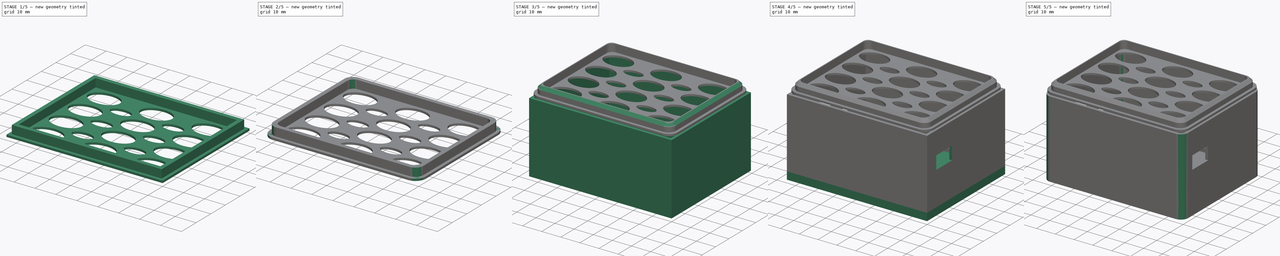
[diagram: build sequence overview — one tinted view per stage of 5, left to right]
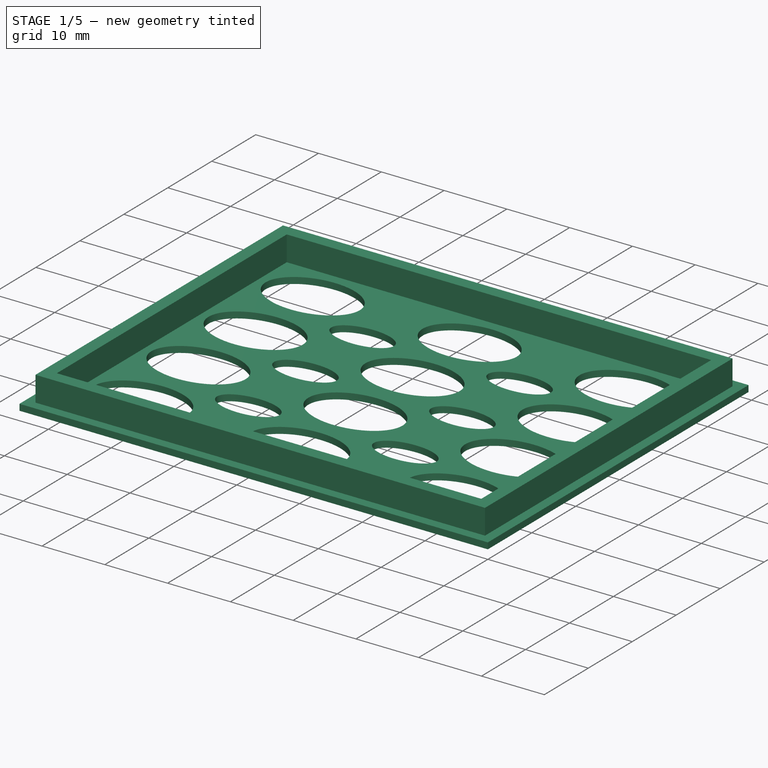
[diagram: stage 1 of 5 — iso view after this stage's code; geometry added in this stage tinted green]
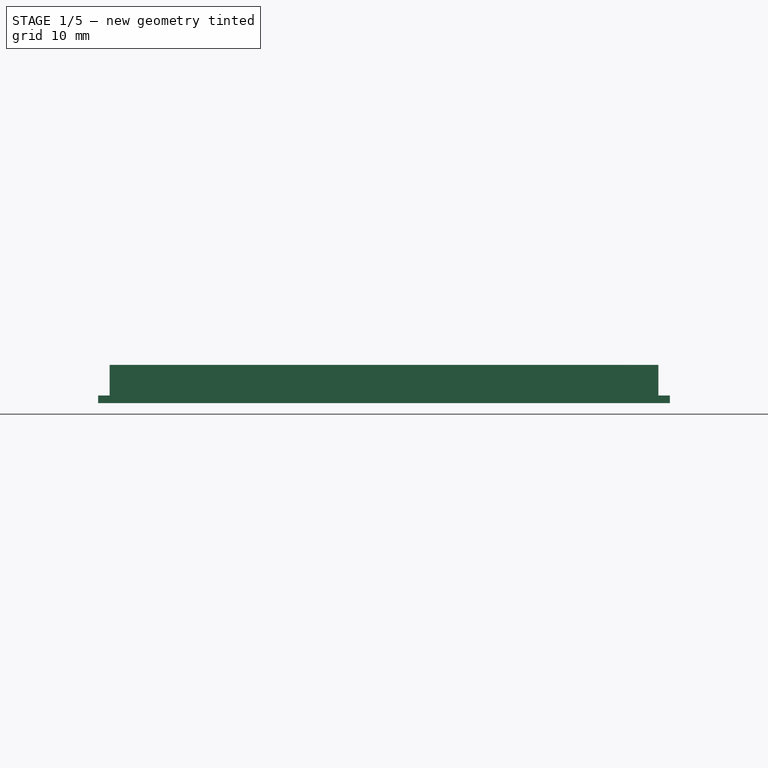
[diagram: stage 1 of 5 — front view after this stage's code; geometry added in this stage tinted green]
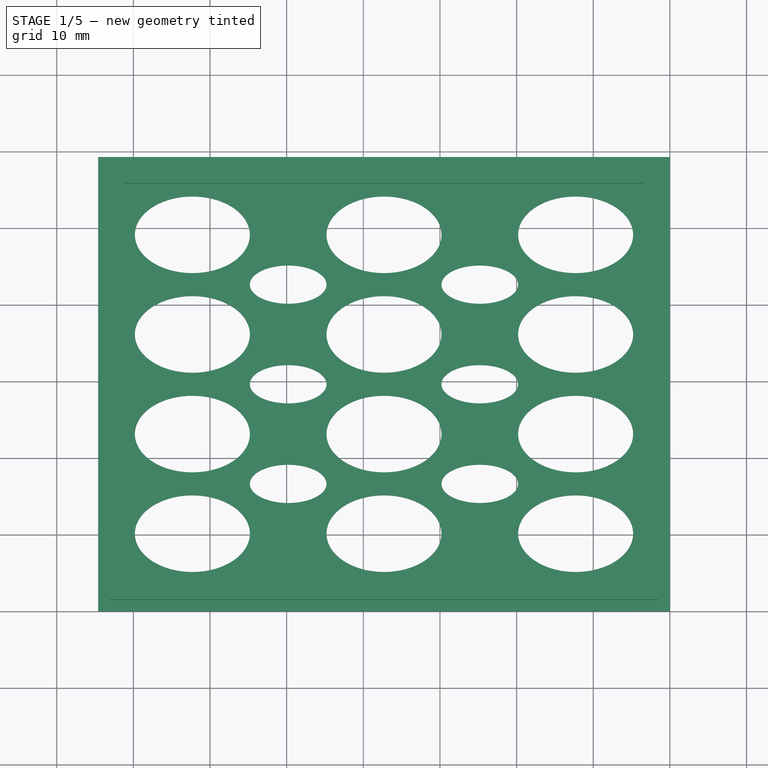
[diagram: stage 1 of 5 — top view after this stage's code; geometry added in this stage tinted green]
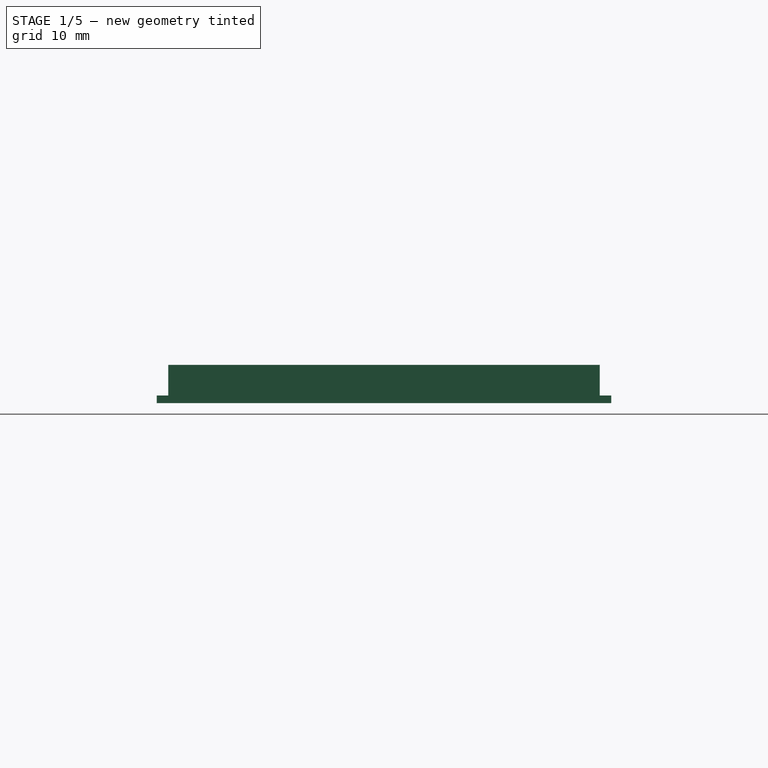
[diagram: stage 1 of 5 — right view after this stage's code; geometry added in this stage tinted green]
FCSTD DOCUMENT  (FreeCAD 0.19R)
Label: Case
License: All rights reserved
LicenseURL: http://en.wikipedia.org/wiki/All_rights_reserved
objects: Sketcher::SketchObject×10, PartDesign::Pad×5, PartDesign::Fillet×5, PartDesign::Pocket×3, PartDesign::Body×2, PartDesign::Hole×1, PartDesign::Chamfer×1
note: 42 computed .brp shape members not serialized (recipe doc carries the construction recipe); baked Part::Feature solids carry a one-line shape summary decoded from their .brp

FEATURE [Sketcher::SketchObject] Sketch004
  MapMode = 5
  Placement = pos=(0,0,0) rot=(0.57735,0.57735,0.57735;2.0944rad)
  sketch-geometry (4):
    g0: LineSegment StartX=7 StartY=25 StartZ=0 EndX=19 EndY=25 EndZ=0
    g1: LineSegment StartX=19 StartY=25 StartZ=0 EndX=19 EndY=18 EndZ=0
    g2: LineSegment StartX=19 StartY=18 StartZ=0 EndX=7 EndY=18 EndZ=0
    g3: LineSegment StartX=7 StartY=18 StartZ=0 EndX=7 EndY=25 EndZ=0
  constraints (12):
    c: Coincident(g0,g1)
    c: Coincident(g1,g2)
    c: Coincident(g2,g3)
    c: Coincident(g3,g0)
    c: Horizontal(g0)
    c: Horizontal(g2)
    c: Vertical(g1)
    c: Vertical(g3)
    c: DistanceX(g-1,g2) = 7
    c: DistanceX(g2,g1) = 12
    c: DistanceY(g-1,g1) = 18
    c: DistanceY(g2,g0) = 7
FEATURE [Sketcher::SketchObject] Sketch006
  MapMode = 5
  Placement = pos=(0,0,38) rot=(0,0,1;0rad)
  sketch-geometry (4):
    g0: LineSegment StartX=0 StartY=0 StartZ=0 EndX=-74.6 EndY=0 EndZ=0
    g1: LineSegment StartX=-74.6 StartY=0 StartZ=0 EndX=-74.6 EndY=59.3 EndZ=0
    g2: LineSegment StartX=-74.6 StartY=59.3 StartZ=0 EndX=0 EndY=59.3 EndZ=0
    g3: LineSegment StartX=0 StartY=59.3 StartZ=0 EndX=0 EndY=0 EndZ=0
  constraints (11):
    c: Coincident(g0,g1)
    c: Coincident(g1,g2)
    c: Coincident(g2,g3)
    c: Coincident(g3,g0)
    c: Horizontal(g0)
    c: Horizontal(g2)
    c: Vertical(g1)
    c: Vertical(g3)
    c: Coincident(g0,g-1)
    c: DistanceX(g2,g2) = 74.6
    c: DistanceY(g3,g3) = 59.3
FEATURE [PartDesign::Pad] Pad002
  AllowMultiFace = false
  Direction = (1,1,1)
  Length = 1
  Length2 = 100
  Placement = pos=(0,0,38) rot=(0,0,1;0rad)
  Profile = -> Sketch006
  Type = 0
FEATURE [Sketcher::SketchObject] Sketch002
  MapMode = 5
  Placement = pos=(0,0,39) rot=(0,0,1;0rad)
  Support = -> [Pad002]
  sketch-geometry (8):
    g0: LineSegment StartX=-73.1 StartY=57.8 StartZ=0 EndX=-1.5 EndY=57.8 EndZ=0
    g1: LineSegment StartX=-73.1 StartY=1.5 StartZ=0 EndX=-73.1 EndY=57.8 EndZ=0
    g2: LineSegment StartX=-73.1 StartY=1.5 StartZ=0 EndX=-1.5 EndY=1.5 EndZ=0
    g3: LineSegment StartX=-1.5 StartY=1.5 StartZ=0 EndX=-1.5 EndY=57.8 EndZ=0
    g4: LineSegment StartX=-71.1 StartY=55.8 StartZ=0 EndX=-3.5 EndY=55.8 EndZ=0
    g5: LineSegment StartX=-3.5 StartY=55.8 StartZ=0 EndX=-3.5 EndY=3.5 EndZ=0
    g6: LineSegment StartX=-3.5 StartY=3.5 StartZ=0 EndX=-71.1 EndY=3.5 EndZ=0
    g7: LineSegment StartX=-71.1 StartY=3.5 StartZ=0 EndX=-71.1 EndY=55.8 EndZ=0
  constraints (24):
    c: Coincident(g1,g0)
    c: Horizontal(g0)
    c: Vertical(g1)
    c: DistanceX(g0,g0) = 71.6
    c: DistanceY(g1,g1) = 56.3
    c: Coincident(g1,g2)
    c: Horizontal(g2)
    c: Coincident(g2,g3)
    c: Coincident(g3,g0)
    c: Vertical(g3)
    c: DistanceX(g0,g-1) = 1.5
    c: DistanceY(g-1,g2) = 1.5
    c: Coincident(g4,g5)
    c: Coincident(g5,g6)
    c: Coincident(g6,g7)
    c: Coincident(g7,g4)
    c: Horizontal(g4)
    c: Horizontal(g6)
    c: Vertical(g5)
    c: Vertical(g7)
    c: Distance(g5,g3) = 2
    c: Distance(g5,g2) = 2
    c: Distance(g4,g1) = 2
    c: Distance(g4,g0) = 2
FEATURE [PartDesign::Pad] Pad003
  AllowMultiFace = false
  BaseFeature = -> Pad002
  Direction = (1,1,1)
  Length = 4
  Length2 = 100
  Placement = pos=(0,0,38) rot=(0,0,1;0rad)
  Profile = -> Sketch002
  Type = 0
FEATURE [Sketcher::SketchObject] Sketch003
  MapMode = 5
  Placement = pos=(0,0,39) rot=(0,0,1;0rad)
  Support = -> [Pad003]
  sketch-geometry (124):
    g0: Ellipse CenterX=-12.3 CenterY=49.15 CenterZ=0 NormalX=0 NormalY=0 NormalZ=1 MajorRadius=7.5 MinorRadius=5 AngleXU=0
    g1: LineSegment [constr] StartX=-4.8 StartY=49.15 StartZ=0 EndX=-19.8 EndY=49.15 EndZ=0
    g2: LineSegment [constr] StartX=-12.3 StartY=54.15 StartZ=0 EndX=-12.3 EndY=44.15 EndZ=0
    g3: GeomPoint X=-6.70983 Y=49.15 Z=0
    g4: GeomPoint X=-17.8902 Y=49.15 Z=0
    g5: Ellipse CenterX=-12.3 CenterY=36.15 CenterZ=0 NormalX=0 NormalY=0 NormalZ=1 MajorRadius=7.5 MinorRadius=5 AngleXU=0
    g6: LineSegment [constr] StartX=-4.8 StartY=36.15 StartZ=0 EndX=-19.8 EndY=36.15 EndZ=0
    g7: LineSegment [constr] StartX=-12.3 StartY=41.15 StartZ=0 EndX=-12.3 EndY=31.15 EndZ=0
    g8: GeomPoint X=-6.70983 Y=36.15 Z=0
    g9: GeomPoint X=-17.8902 Y=36.15 Z=0
    g10: Ellipse CenterX=-12.3 CenterY=23.15 CenterZ=0 NormalX=0 NormalY=0 NormalZ=1 MajorRadius=7.5 MinorRadius=5 AngleXU=0
    g11: LineSegment [constr] StartX=-4.8 StartY=23.15 StartZ=0 EndX=-19.8 EndY=23.15 EndZ=0
    g12: LineSegment [constr] StartX=-12.3 StartY=28.15 StartZ=0 EndX=-12.3 EndY=18.15 EndZ=0
    g13: GeomPoint X=-6.70983 Y=23.15 Z=0
    g14: GeomPoint X=-17.8902 Y=23.15 Z=0
    g15: Ellipse CenterX=-12.3 CenterY=10.15 CenterZ=0 NormalX=0 NormalY=0 NormalZ=1 MajorRadius=7.5 MinorRadius=5 AngleXU=0
    g16: LineSegment [constr] StartX=-4.8 StartY=10.15 StartZ=0 EndX=-19.8 EndY=10.15 EndZ=0
    g17: LineSegment [constr] StartX=-12.3 StartY=15.15 StartZ=0 EndX=-12.3 EndY=5.15 EndZ=0
    g18: GeomPoint X=-6.70983 Y=10.15 Z=0
    g19: GeomPoint X=-17.8902 Y=10.15 Z=0
    g20: LineSegment [constr] StartX=-12.3 StartY=44.15 StartZ=0 EndX=-12.3 EndY=41.15 EndZ=0
    g21: LineSegment [constr] StartX=-12.3 StartY=31.15 StartZ=0 EndX=-12.3 EndY=28.15 EndZ=0
    g22: LineSegment [constr] StartX=-12.3 StartY=18.15 StartZ=0 EndX=-12.3 EndY=15.15 EndZ=0
    g23: Ellipse CenterX=-24.8 CenterY=42.65 CenterZ=0 NormalX=0 NormalY=0 NormalZ=1 MajorRadius=5 MinorRadius=2.5 AngleXU=3.14159
    g24: LineSegment [constr] StartX=-29.8 StartY=42.65 StartZ=0 EndX=-19.8 EndY=42.65 EndZ=0
    g25: LineSegment [constr] StartX=-24.8 StartY=40.15 StartZ=0 EndX=-24.8 EndY=45.15 EndZ=0
    g26: GeomPoint X=-29.1301 Y=42.65 Z=0
    g27: GeomPoint X=-20.4699 Y=42.65 Z=0
    g28: LineSegment [constr] StartX=-24.8 StartY=40.15 StartZ=0 EndX=-19.8 EndY=36.15 EndZ=0
    g29: LineSegment [constr] StartX=-24.8 StartY=45.15 StartZ=0 EndX=-19.8 EndY=49.15 EndZ=0
    g30: LineSegment [constr] StartX=-19.8 StartY=49.15 StartZ=0 EndX=-19.8 EndY=42.65 EndZ=0
    g31: Ellipse CenterX=-24.8 CenterY=29.65 CenterZ=0 NormalX=0 NormalY=0 NormalZ=1 MajorRadius=5 MinorRadius=2.5 AngleXU=3.14159
    g32: LineSegment [constr] StartX=-29.8 StartY=29.65 StartZ=0 EndX=-19.8 EndY=29.65 EndZ=0
    g33: LineSegment [constr] StartX=-24.8 StartY=27.15 StartZ=0 EndX=-24.8 EndY=32.15 EndZ=0
    g34: GeomPoint X=-29.1301 Y=29.65 Z=0
    g35: GeomPoint X=-20.4699 Y=29.65 Z=0
    g36: LineSegment [constr] StartX=-24.8 StartY=27.15 StartZ=0 EndX=-19.8 EndY=23.15 EndZ=0
    g37: LineSegment [constr] StartX=-24.8 StartY=32.15 StartZ=0 EndX=-19.8 EndY=36.15 EndZ=0
    g38: LineSegment [constr] StartX=-19.8 StartY=36.15 StartZ=0 EndX=-19.8 EndY=29.65 EndZ=0
    g39: Ellipse CenterX=-24.8 CenterY=16.65 CenterZ=0 NormalX=0 NormalY=0 NormalZ=1 MajorRadius=5 MinorRadius=2.5 AngleXU=3.14159
    g40: LineSegment [constr] StartX=-29.8 StartY=16.65 StartZ=0 EndX=-19.8 EndY=16.65 EndZ=0
    g41: LineSegment [constr] StartX=-24.8 StartY=14.15 StartZ=0 EndX=-24.8 EndY=19.15 EndZ=0
    g42: GeomPoint X=-29.1301 Y=16.65 Z=0
    g43: GeomPoint X=-20.4699 Y=16.65 Z=0
    g44: LineSegment [constr] StartX=-24.8 StartY=14.15 StartZ=0 EndX=-19.8 EndY=10.15 EndZ=0
    g45: LineSegment [constr] StartX=-24.8 StartY=19.15 StartZ=0 EndX=-19.8 EndY=23.15 EndZ=0
    g46: LineSegment [constr] StartX=-19.8 StartY=23.15 StartZ=0 EndX=-19.8 EndY=16.65 EndZ=0
    g47: Ellipse CenterX=-37.3 CenterY=49.15 CenterZ=0 NormalX=0 NormalY=0 NormalZ=1 MajorRadius=7.5 MinorRadius=5 AngleXU=0
    g48: LineSegment [constr] StartX=-29.8 StartY=49.15 StartZ=0 EndX=-44.8 EndY=49.15 EndZ=0
    g49: LineSegment [constr] StartX=-37.3 StartY=54.15 StartZ=0 EndX=-37.3 EndY=44.15 EndZ=0
    g50: GeomPoint X=-31.7098 Y=49.15 Z=0
    g51: GeomPoint X=-42.8902 Y=49.15 Z=0
    g52: Ellipse CenterX=-37.3 CenterY=36.15 CenterZ=0 NormalX=0 NormalY=0 NormalZ=1 MajorRadius=7.5 MinorRadius=5 AngleXU=0
    g53: LineSegment [constr] StartX=-29.8 StartY=36.15 StartZ=0 EndX=-44.8 EndY=36.15 EndZ=0
    g54: LineSegment [constr] StartX=-37.3 StartY=41.15 StartZ=0 EndX=-37.3 EndY=31.15 EndZ=0
    g55: GeomPoint X=-31.7098 Y=36.15 Z=0
    g56: GeomPoint X=-42.8902 Y=36.15 Z=0
    g57: Ellipse CenterX=-37.3 CenterY=23.15 CenterZ=0 NormalX=0 NormalY=0 NormalZ=1 MajorRadius=7.5 MinorRadius=5 AngleXU=0
    g58: LineSegment [constr] StartX=-29.8 StartY=23.15 StartZ=0 EndX=-44.8 EndY=23.15 EndZ=0
    g59: LineSegment [constr] StartX=-37.3 StartY=28.15 StartZ=0 EndX=-37.3 EndY=18.15 EndZ=0
    g60: GeomPoint X=-31.7098 Y=23.15 Z=0
    g61: GeomPoint X=-42.8902 Y=23.15 Z=0
    g62: Ellipse CenterX=-37.3 CenterY=10.15 CenterZ=0 NormalX=0 NormalY=0 NormalZ=1 MajorRadius=7.5 MinorRadius=5 AngleXU=0
    g63: LineSegment [constr] StartX=-29.8 StartY=10.15 StartZ=0 EndX=-44.8 EndY=10.15 EndZ=0
    g64: LineSegment [constr] StartX=-37.3 StartY=15.15 StartZ=0 EndX=-37.3 EndY=5.15 EndZ=0
    g65: GeomPoint X=-31.7098 Y=10.15 Z=0
    g66: GeomPoint X=-42.8902 Y=10.15 Z=0
    g67: LineSegment [constr] StartX=-37.3 StartY=44.15 StartZ=0 EndX=-37.3 EndY=41.15 EndZ=0
    g68: LineSegment [constr] StartX=-37.3 StartY=31.15 StartZ=0 EndX=-37.3 EndY=28.15 EndZ=0
    g69: LineSegment [constr] StartX=-37.3 StartY=18.15 StartZ=0 EndX=-37.3 EndY=15.15 EndZ=0
    g70: Ellipse CenterX=-49.8 CenterY=42.65 CenterZ=0 NormalX=0 NormalY=0 NormalZ=1 MajorRadius=5 MinorRadius=2.5 AngleXU=3.14159
    g71: LineSegment [constr] StartX=-54.8 StartY=42.65 StartZ=0 EndX=-44.8 EndY=42.65 EndZ=0
    g72: LineSegment [constr] StartX=-49.8 StartY=40.15 StartZ=0 EndX=-49.8 EndY=45.15 EndZ=0
    g73: GeomPoint X=-54.1301 Y=42.65 Z=0
    g74: GeomPoint X=-45.4699 Y=42.65 Z=0
    g75: LineSegment [constr] StartX=-49.8 StartY=40.15 StartZ=0 EndX=-44.8 EndY=36.15 EndZ=0
    g76: LineSegment [constr] StartX=-49.8 StartY=45.15 StartZ=0 EndX=-44.8 EndY=49.15 EndZ=0
    g77: LineSegment [constr] StartX=-44.8 StartY=49.15 StartZ=0 EndX=-44.8 EndY=42.65 EndZ=0
    g78: Ellipse CenterX=-49.8 CenterY=29.65 CenterZ=0 NormalX=0 NormalY=0 NormalZ=1 MajorRadius=5 MinorRadius=2.5 AngleXU=3.14159
    g79: LineSegment [constr] StartX=-54.8 StartY=29.65 StartZ=0 EndX=-44.8 EndY=29.65 EndZ=0
    g80: LineSegment [constr] StartX=-49.8 StartY=27.15 StartZ=0 EndX=-49.8 EndY=32.15 EndZ=0
    g81: GeomPoint X=-54.1301 Y=29.65 Z=0
    g82: GeomPoint X=-45.4699 Y=29.65 Z=0
    g83: LineSegment [constr] StartX=-49.8 StartY=27.15 StartZ=0 EndX=-44.8 EndY=23.15 EndZ=0
    g84: LineSegment [constr] StartX=-49.8 StartY=32.15 StartZ=0 EndX=-44.8 EndY=36.15 EndZ=0
    g85: LineSegment [constr] StartX=-44.8 StartY=36.15 StartZ=0 EndX=-44.8 EndY=29.65 EndZ=0
    g86: Ellipse CenterX=-49.8 CenterY=16.65 CenterZ=0 NormalX=0 NormalY=0 NormalZ=1 MajorRadius=5 MinorRadius=2.5 AngleXU=3.14159
    g87: LineSegment [constr] StartX=-54.8 StartY=16.65 StartZ=0 EndX=-44.8 EndY=16.65 EndZ=0
    g88: LineSegment [constr] StartX=-49.8 StartY=14.15 StartZ=0 EndX=-49.8 EndY=19.15 EndZ=0
    g89: GeomPoint X=-54.1301 Y=16.65 Z=0
    g90: GeomPoint X=-45.4699 Y=16.65 Z=0
    g91: LineSegment [constr] StartX=-49.8 StartY=14.15 StartZ=0 EndX=-44.8 EndY=10.15 EndZ=0
    g92: LineSegment [constr] StartX=-49.8 StartY=19.15 StartZ=0 EndX=-44.8 EndY=23.15 EndZ=0
    g93: LineSegment [constr] StartX=-44.8 StartY=23.15 StartZ=0 EndX=-44.8 EndY=16.65 EndZ=0
    g94: LineSegment [constr] StartX=-29.8 StartY=29.65 StartZ=0 EndX=-29.8 EndY=23.15 EndZ=0
    g95: LineSegment [constr] StartX=-29.8 StartY=36.15 StartZ=0 EndX=-29.8 EndY=29.65 EndZ=0
    g96: GeomPoint X=-54.8 Y=29.65 Z=0
    g97: Ellipse CenterX=-62.3 CenterY=49.15 CenterZ=0 NormalX=0 NormalY=0 NormalZ=1 MajorRadius=7.5 MinorRadius=5 AngleXU=0
    g98: LineSegment [constr] StartX=-54.8 StartY=49.15 StartZ=0 EndX=-69.8 EndY=49.15 EndZ=0
    g99: LineSegment [constr] StartX=-62.3 StartY=54.15 StartZ=0 EndX=-62.3 EndY=44.15 EndZ=0
    g100: GeomPoint X=-56.7098 Y=49.15 Z=0
    g101: GeomPoint X=-67.8902 Y=49.15 Z=0
    g102: Ellipse CenterX=-62.3 CenterY=36.15 CenterZ=0 NormalX=0 NormalY=0 NormalZ=1 MajorRadius=7.5 MinorRadius=5 AngleXU=0
    g103: LineSegment [constr] StartX=-54.8 StartY=36.15 StartZ=0 EndX=-69.8 EndY=36.15 EndZ=0
    g104: LineSegment [constr] StartX=-62.3 StartY=41.15 StartZ=0 EndX=-62.3 EndY=31.15 EndZ=0
    g105: GeomPoint X=-56.7098 Y=36.15 Z=0
    g106: GeomPoint X=-67.8902 Y=36.15 Z=0
    g107: Ellipse CenterX=-62.3 CenterY=23.15 CenterZ=0 NormalX=0 NormalY=0 NormalZ=1 MajorRadius=7.5 MinorRadius=5 AngleXU=0
    g108: LineSegment [constr] StartX=-54.8 StartY=23.15 StartZ=0 EndX=-69.8 EndY=23.15 EndZ=0
    g109: LineSegment [constr] StartX=-62.3 StartY=28.15 StartZ=0 EndX=-62.3 EndY=18.15 EndZ=0
    g110: GeomPoint X=-56.7098 Y=23.15 Z=0
    g111: GeomPoint X=-67.8902 Y=23.15 Z=0
    g112: Ellipse CenterX=-62.3 CenterY=10.15 CenterZ=0 NormalX=0 NormalY=0 NormalZ=1 MajorRadius=7.5 MinorRadius=5 AngleXU=0
    g113: LineSegment [constr] StartX=-54.8 StartY=10.15 StartZ=0 EndX=-69.8 EndY=10.15 EndZ=0
    g114: LineSegment [constr] StartX=-62.3 StartY=15.15 StartZ=0 EndX=-62.3 EndY=5.15 EndZ=0
    g115: GeomPoint X=-56.7098 Y=10.15 Z=0
    g116: GeomPoint X=-67.8902 Y=10.15 Z=0
    g117: LineSegment [constr] StartX=-62.3 StartY=44.15 StartZ=0 EndX=-62.3 EndY=41.15 EndZ=0
    g118: LineSegment [constr] StartX=-62.3 StartY=31.15 StartZ=0 EndX=-62.3 EndY=28.15 EndZ=0
    g119: LineSegment [constr] StartX=-62.3 StartY=18.15 StartZ=0 EndX=-62.3 EndY=15.15 EndZ=0
    g120: LineSegment [constr] StartX=-54.8 StartY=29.65 StartZ=0 EndX=-54.8 EndY=23.15 EndZ=0
    g121: LineSegment [constr] StartX=-54.8 StartY=36.15 StartZ=0 EndX=-54.8 EndY=29.65 EndZ=0
    g122: LineSegment [constr] StartX=-69.8 StartY=10.15 StartZ=0 EndX=-74.6 EndY=10.15 EndZ=0
    g123: LineSegment [constr] StartX=-4.8 StartY=10.15 StartZ=0 EndX=0 EndY=10.15 EndZ=0
  constraints (177):
    c: InternalAlignment(g1-g4 -> g0) x4
    c: Horizontal(g1)
    c: InternalAlignment(g6-g9 -> g5) x4
    c: Horizontal(g6)
    c: InternalAlignment(g11-g14 -> g10) x4
    c: Horizontal(g11)
    c: InternalAlignment(g16-g19 -> g15) x4
    c: Horizontal(g16)
    c: Coincident(g20,g2)
    c: Coincident(g20,g7)
    c: Coincident(g21,g7)
    c: Coincident(g21,g12)
    c: Coincident(g22,g12)
    c: Coincident(g22,g17)
    c: Vertical(g22)
    c: Vertical(g21)
    c: Vertical(g20)
    c: Equal(g20,g21)
    c: Equal(g21,g22)
    c: DistanceY(g2,g2) = 10
    c: Equal(g0,g5)
    c: Equal(g5,g10)
    c: Equal(g10,g15)
    c: DistanceX(g1,g1) = 15
    c: DistanceY(g20,g20) = 3
    c: InternalAlignment(g24-g27 -> g23) x4
    c: Horizontal(g24)
    c: DistanceX(g24,g24) = 10
    c: DistanceY(g25,g25) = 5
    c: Coincident(g28,g25)
    c: Coincident(g28,g6)
    c: Coincident(g29,g25)
    c: Coincident(g29,g1)
    c: Equal(g29,g28)
    c: Coincident(g30,g1)
    c: Coincident(g30,g24)
    c: Vertical(g30)
    c: Tangent(g0,g0)
    c: InternalAlignment(g32-g35 -> g31) x4
    c: Horizontal(g32)
    c: Equal(g24,g32) = 10
    c: Equal(g25,g33) = 5
    c: Coincident(g36,g33)
    c: Coincident(g37,g33)
    c: Equal(g37,g36)
    c: Coincident(g38,g32)
    c: Vertical(g38)
    c: Coincident(g38,g6)
    c: Coincident(g11,g36)
    c: InternalAlignment(g40-g43 -> g39) x4
    c: Horizontal(g40)
    c: Coincident(g44,g41)
    c: Coincident(g45,g41)
    c: Equal(g45,g44)
    c: Coincident(g46,g40)
    c: Vertical(g46)
    c: Coincident(g46,g11)
    c: Coincident(g16,g44)
    c: Coincident(g45,g11)
    c: Coincident(g37,g6)
    c: Equal(g40,g32)
    c: Equal(g41,g33)
    c: Equal(g33,g25)
    c: InternalAlignment(g48-g51 -> g47) x4
    c: Horizontal(g48)
    c: InternalAlignment(g53-g56 -> g52) x4
    c: Horizontal(g53)
    c: InternalAlignment(g58-g61 -> g57) x4
    c: Horizontal(g58)
    c: InternalAlignment(g63-g66 -> g62) x4
    c: Horizontal(g63)
    c: Coincident(g67,g49)
    c: Coincident(g67,g54)
    c: Coincident(g68,g54)
    c: Coincident(g68,g59)
    c: Coincident(g69,g59)
    c: Coincident(g69,g64)
    c: Vertical(g69)
    c: Vertical(g68)
    c: Vertical(g67)
    c: Equal(g67,g68)
    c: Equal(g68,g69)
    c: Equal(g2,g49) = 10
    c: Equal(g47,g52)
    c: Equal(g52,g57)
    c: Equal(g57,g62)
    c: Equal(g1,g48) = 15
    c: Equal(g20,g67) = 3
    c: InternalAlignment(g71-g74 -> g70) x4
    c: Horizontal(g71)
    c: Equal(g24,g71) = 10
    c: Equal(g25,g72) = 5
    c: Coincident(g75,g72)
    c: Coincident(g75,g53)
    c: Coincident(g76,g72)
    c: Coincident(g76,g48)
    c: Equal(g76,g75)
    c: Coincident(g77,g48)
    c: Coincident(g77,g71)
    c: Vertical(g77)
    c: Tangent(g47,g47)
    c: InternalAlignment(g79-g82 -> g78) x4
    c: Horizontal(g79)
    c: Equal(g71,g79) = 10
    c: Equal(g72,g80) = 5
    c: Coincident(g83,g80)
    c: Coincident(g84,g80)
    c: Equal(g84,g83)
    c: Coincident(g85,g79)
    c: Vertical(g85)
    c: Coincident(g85,g53)
    c: Coincident(g58,g83)
    c: InternalAlignment(g87-g90 -> g86) x4
    c: Horizontal(g87)
    c: Coincident(g91,g88)
    c: Coincident(g92,g88)
    c: Equal(g92,g91)
    c: Coincident(g93,g87)
    c: Vertical(g93)
    c: Coincident(g93,g58)
    c: Coincident(g63,g91)
    c: Coincident(g92,g58)
    c: Coincident(g84,g53)
    c: Equal(g87,g79)
    c: Equal(g88,g80)
    c: Equal(g80,g72)
    c: Coincident(g94,g32)
    c: Coincident(g94,g58)
    c: Vertical(g94)
    c: Coincident(g95,g32)
    c: Vertical(g95)
    c: Tangent(g31,g31)
    c: Equal(g94,g95)
    c: Coincident(g95,g53)
    c: InternalAlignment(g98-g101 -> g97) x4
    c: Horizontal(g98)
    c: InternalAlignment(g103-g106 -> g102) x4
    c: Horizontal(g103)
    c: InternalAlignment(g108-g111 -> g107) x4
    c: Horizontal(g108)
    c: InternalAlignment(g113-g116 -> g112) x4
    c: Horizontal(g113)
    c: Coincident(g117,g99)
    c: Coincident(g117,g104)
    c: Coincident(g118,g104)
    c: Coincident(g118,g109)
    c: Coincident(g119,g109)
    c: Coincident(g119,g114)
    c: Vertical(g119)
    c: Vertical(g118)
    c: Vertical(g117)
    c: Equal(g117,g118)
    c: Equal(g118,g119)
    c: Equal(g97,g102)
    c: Equal(g102,g107)
    c: Equal(g107,g112)
    c: Tangent(g97,g97)
    c: Coincident(g120,g108)
    c: Vertical(g120)
    c: Vertical(g121)
    c: Equal(g120,g121)
    c: Coincident(g121,g103)
    c: Coincident(g96,g121)
    c: Coincident(g96,g120)
    c: Coincident(g96,g79)
    c: Equal(g97,g47)
    c: Equal(g67,g117)
    c: Equal(g99,g49)
    c: Equal(g98,g48)
    c: Coincident(g122,g113)
    c: Horizontal(g122)
    c: Coincident(g123,g16)
    c: PointOnObject(g123,g-2)
    c: Horizontal(g123)
    c: Equal(g123,g122)
    c: DistanceX(g122,g-1) = 74.6
    c: DistanceY(g-1,g17) = 5.15
FEATURE [PartDesign::Pocket] Pocket002
  AllowMultiFace = false
  BaseFeature = -> Pad003
  Length = 5
  Length2 = 100
  Placement = pos=(0,0,38) rot=(0,0,1;0rad)
  Profile = -> Sketch003
  Type = 0
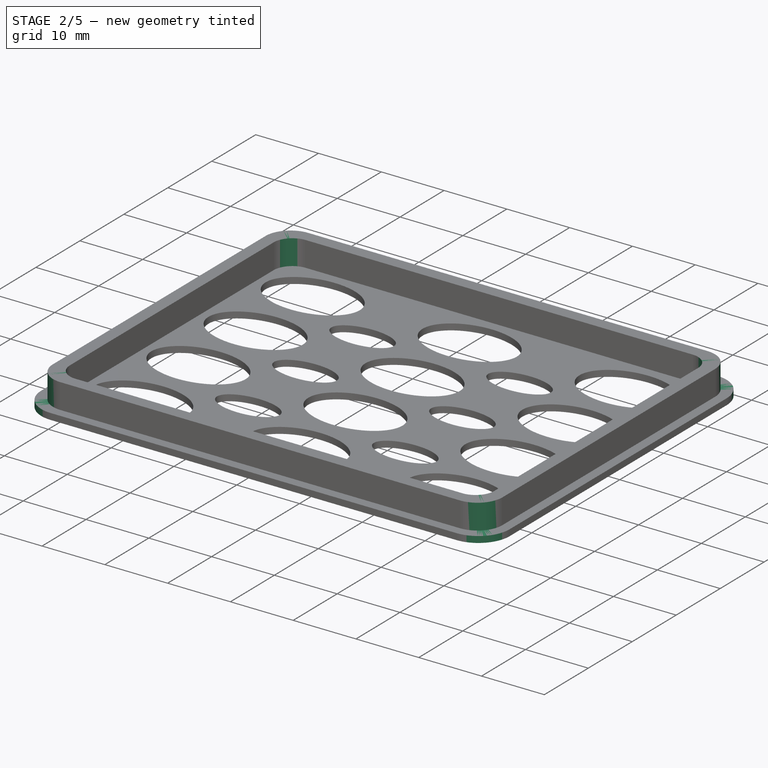
[diagram: stage 2 of 5 — iso view after this stage's code; geometry added in this stage tinted green]
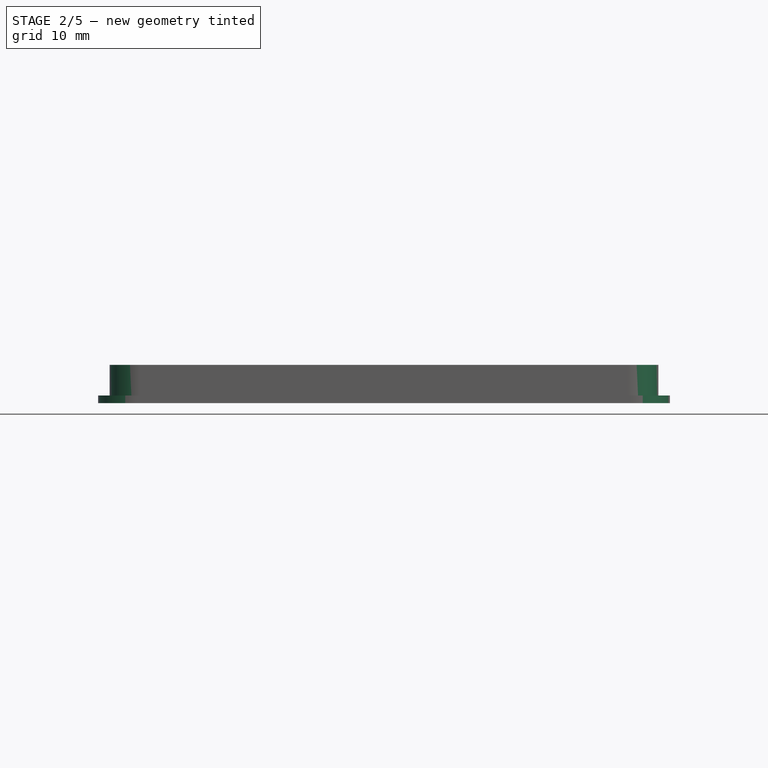
[diagram: stage 2 of 5 — front view after this stage's code; geometry added in this stage tinted green]
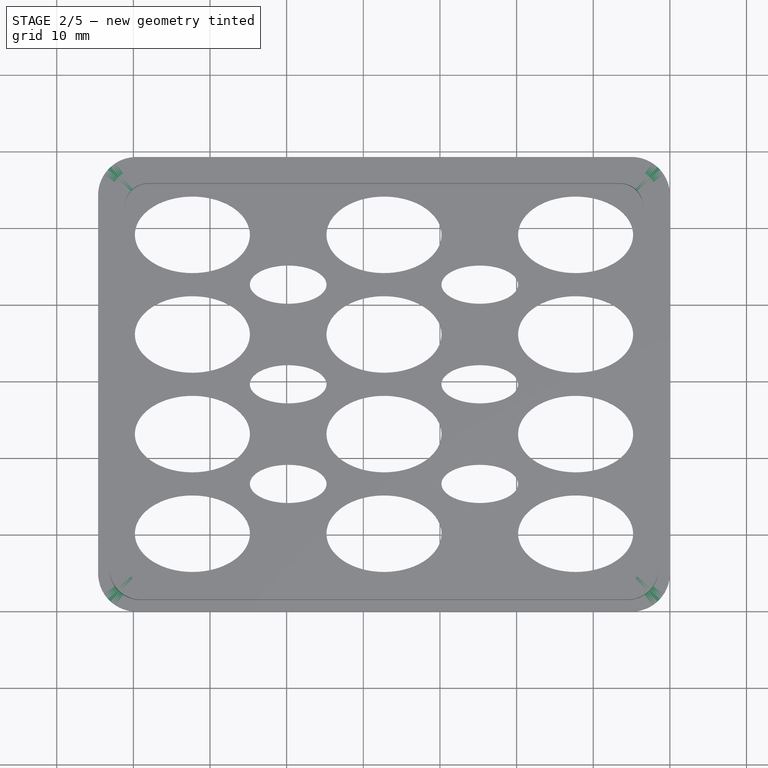
[diagram: stage 2 of 5 — top view after this stage's code; geometry added in this stage tinted green]
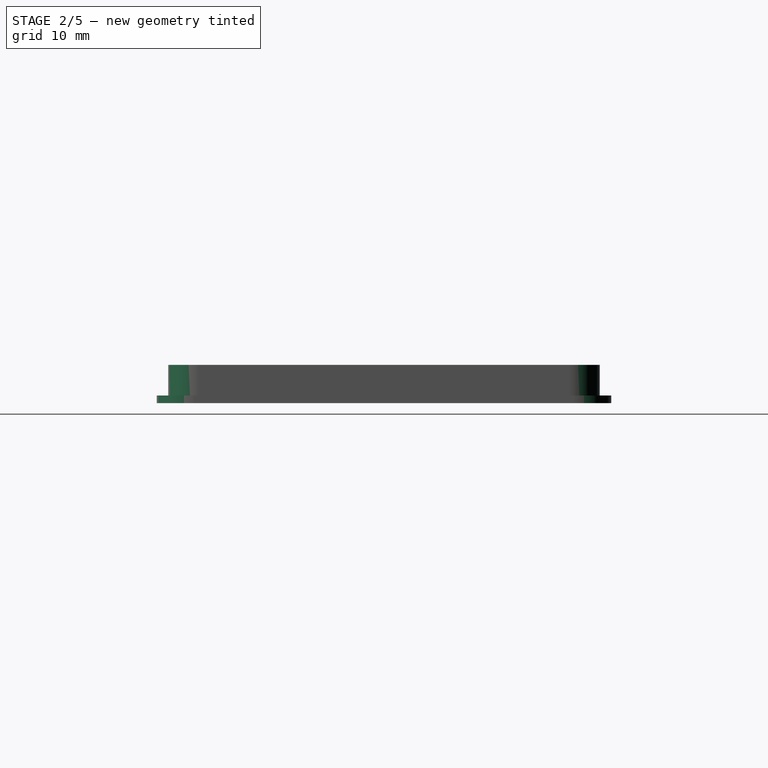
[diagram: stage 2 of 5 — right view after this stage's code; geometry added in this stage tinted green]
FEATURE [PartDesign::Fillet] Fillet008
  Base = -> Pocket002 [Edge5,Edge1,Edge2,Edge8]
  BaseFeature = -> Pocket002
  Placement = pos=(0,0,38) rot=(0,0,1;0rad)
  Radius = 5
  SupportTransform = false
FEATURE [PartDesign::Fillet] Fillet009
  Base = -> Fillet008 [Edge83,Edge85,Edge86,Edge88]
  BaseFeature = -> Fillet008
  Placement = pos=(0,0,38) rot=(0,0,1;0rad)
  Radius = 4
  SupportTransform = false
FEATURE [PartDesign::Body] Body  label="Case"
  Group = -> [Sketch,Pad,Sketch001,Sketch004,Sketch005,Pad004,Pocket,Sketch007,Pocket003,Sketch008,Pad005,Sketch009,Hole,Fillet,Fillet011]
  Origin = -> Origin
  Tip = -> Fillet011
FEATURE [PartDesign::Fillet] Fillet010
  Base = -> Fillet009 [Edge74,Edge76,Edge73,Edge71]
  BaseFeature = -> Fillet009
  Placement = pos=(0,0,38) rot=(0,0,1;0rad)
  Radius = 3
  SupportTransform = false
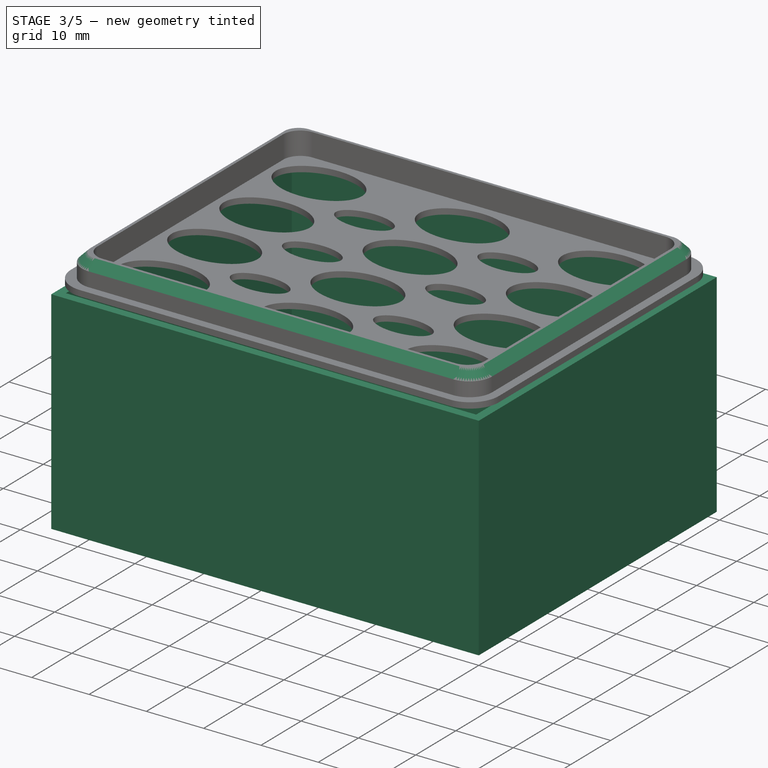
[diagram: stage 3 of 5 — iso view after this stage's code; geometry added in this stage tinted green]
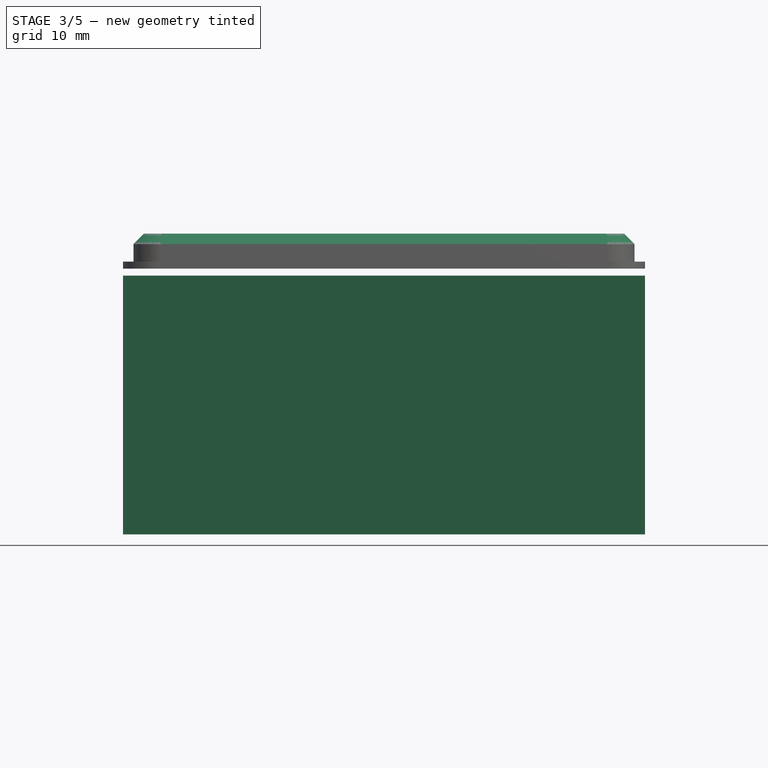
[diagram: stage 3 of 5 — front view after this stage's code; geometry added in this stage tinted green]
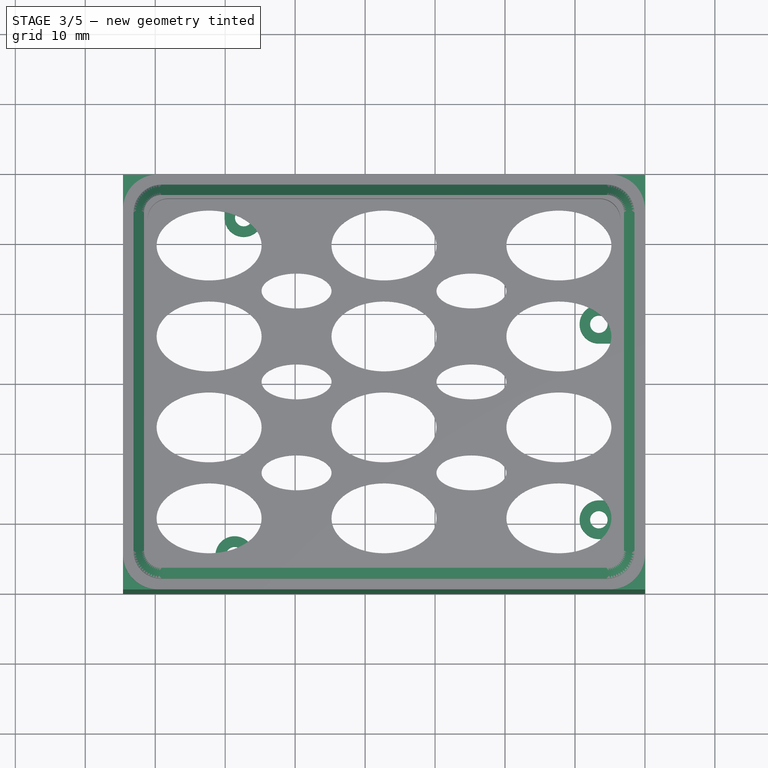
[diagram: stage 3 of 5 — top view after this stage's code; geometry added in this stage tinted green]
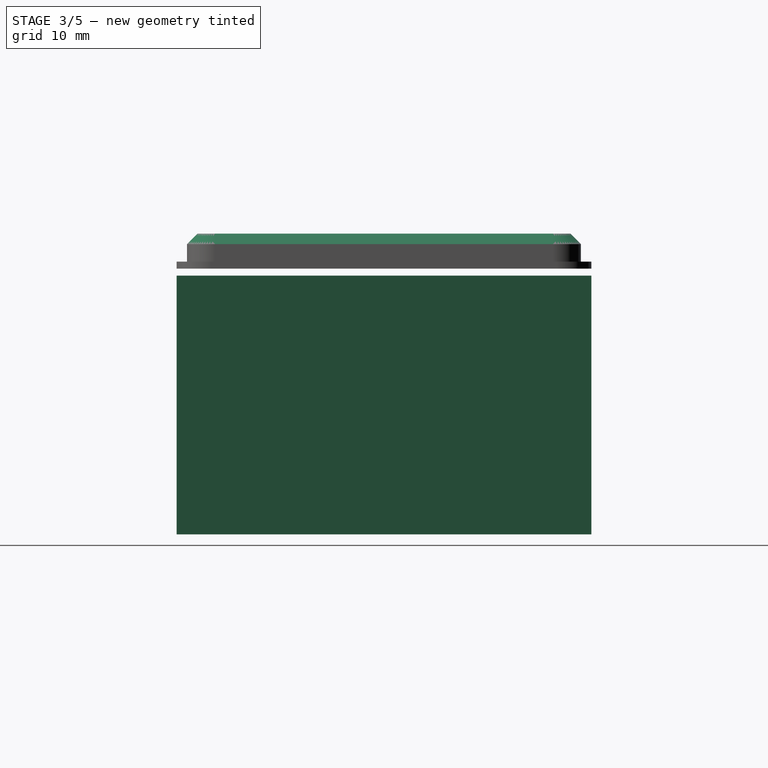
[diagram: stage 3 of 5 — right view after this stage's code; geometry added in this stage tinted green]
FEATURE [Sketcher::SketchObject] Sketch
  MapMode = 5
  Support = -> [XY_Plane]
  sketch-geometry (41):
    g0: LineSegment StartX=0 StartY=0 StartZ=0 EndX=-74.6 EndY=0 EndZ=0
    g1: LineSegment StartX=-74.6 StartY=0 StartZ=0 EndX=-74.6 EndY=59.3 EndZ=0
    g2: LineSegment StartX=-74.6 StartY=59.3 StartZ=0 EndX=0 EndY=59.3 EndZ=0
    g3: LineSegment StartX=0 StartY=59.3 StartZ=0 EndX=0 EndY=0 EndZ=0
    g4: Circle CenterX=-57.35 CenterY=53.78 CenterZ=0 NormalX=0 NormalY=0 NormalZ=1 AngleXU=0 Radius=1.25
    g5: Circle CenterX=-6.59 CenterY=38.54 CenterZ=0 NormalX=0 NormalY=0 NormalZ=1 AngleXU=0 Radius=1.25
    g6: Circle CenterX=-6.59 CenterY=10.6 CenterZ=0 NormalX=0 NormalY=0 NormalZ=1 AngleXU=0 Radius=1.25
    g7: Circle CenterX=-58.65 CenterY=5.48 CenterZ=0 NormalX=0 NormalY=0 NormalZ=1 AngleXU=0 Radius=1.25
    g8: LineSegment StartX=-55.9 StartY=3 StartZ=0 EndX=-3 EndY=3 EndZ=0
    g9: LineSegment StartX=-3 StartY=3 StartZ=0 EndX=-3 EndY=7.85 EndZ=0
    g10: LineSegment StartX=-3 StartY=35.79 StartZ=0 EndX=-3 EndY=13.35 EndZ=0
    g11: LineSegment StartX=-3 StartY=41.29 StartZ=0 EndX=-3 EndY=56.3 EndZ=0
    g12: LineSegment StartX=-3 StartY=56.3 StartZ=0 EndX=-54.6 EndY=56.3 EndZ=0
    g13: LineSegment StartX=-60.1 StartY=56.3 StartZ=0 EndX=-71.6 EndY=56.3 EndZ=0
    g14: LineSegment StartX=-71.6 StartY=56.3 StartZ=0 EndX=-71.6 EndY=3 EndZ=0
    g15: LineSegment StartX=-71.6 StartY=3 StartZ=0 EndX=-61.4 EndY=3 EndZ=0
    g16: LineSegment [constr] StartX=-61.4 StartY=3 StartZ=0 EndX=-55.9 EndY=3 EndZ=0
    g17: LineSegment [constr] StartX=-3 StartY=7.85 StartZ=0 EndX=-3 EndY=13.35 EndZ=0
    g18: LineSegment [constr] StartX=-3 StartY=35.79 StartZ=0 EndX=-3 EndY=41.29 EndZ=0
    g19: LineSegment [constr] StartX=-60.1 StartY=56.3 StartZ=0 EndX=-54.6 EndY=56.3 EndZ=0
    g20: ArcOfCircle CenterX=-57.35 CenterY=53.78 CenterZ=0 NormalX=0 NormalY=0 NormalZ=1 AngleXU=0 Radius=2.75 StartAngle=3.14159 EndAngle=6.28319
    g21: ArcOfCircle CenterX=-6.59 CenterY=38.54 CenterZ=0 NormalX=0 NormalY=0 NormalZ=1 AngleXU=0 Radius=2.75 StartAngle=1.5708 EndAngle=4.71239
    g22: ArcOfCircle CenterX=-6.59 CenterY=10.6 CenterZ=0 NormalX=0 NormalY=0 NormalZ=1 AngleXU=0 Radius=2.75 StartAngle=1.5708 EndAngle=4.71239
    g23: ArcOfCircle CenterX=-58.65 CenterY=5.48 CenterZ=0 NormalX=0 NormalY=0 NormalZ=1 AngleXU=0 Radius=2.75 StartAngle=0 EndAngle=3.14159
    g24: LineSegment StartX=-60.1 StartY=56.3 StartZ=0 EndX=-60.1 EndY=53.78 EndZ=0
    g25: LineSegment StartX=-54.6 StartY=53.78 StartZ=0 EndX=-54.6 EndY=56.3 EndZ=0
    g26: LineSegment StartX=-61.4 StartY=5.48 StartZ=0 EndX=-61.4 EndY=3 EndZ=0
    g27: LineSegment StartX=-55.9 StartY=3 StartZ=0 EndX=-55.9 EndY=5.48 EndZ=0
    g28: LineSegment StartX=-6.59 StartY=13.35 StartZ=0 EndX=-3 EndY=13.35 EndZ=0
    g29: LineSegment StartX=-3 StartY=7.85 StartZ=0 EndX=-6.59 EndY=7.85 EndZ=0
    g30: LineSegment StartX=-6.59 StartY=41.29 StartZ=0 EndX=-3 EndY=41.29 EndZ=0
    g31: LineSegment StartX=-3 StartY=35.79 StartZ=0 EndX=-6.59 EndY=35.79 EndZ=0
    g32: LineSegment [constr] StartX=-72.59 StartY=56.32 StartZ=0 EndX=-2.01 EndY=56.32 EndZ=0
    g33: LineSegment [constr] StartX=-2.01 StartY=56.32 StartZ=0 EndX=-2.01 EndY=2.98 EndZ=0
    g34: LineSegment [constr] StartX=-2.01 StartY=2.98 StartZ=0 EndX=-72.59 EndY=2.98 EndZ=0
    g35: LineSegment [constr] StartX=-72.59 StartY=2.98 StartZ=0 EndX=-72.59 EndY=56.32 EndZ=0
    g36: LineSegment [constr] StartX=-71.6 StartY=56.3 StartZ=0 EndX=-72.59 EndY=56.32 EndZ=0
    g37: LineSegment [constr] StartX=-72.59 StartY=2.98 StartZ=0 EndX=-71.6 EndY=3 EndZ=0
    g38: LineSegment [constr] StartX=-3 StartY=3 StartZ=0 EndX=-2.01 EndY=2.98 EndZ=0
    g39: LineSegment [constr] StartX=-2.01 StartY=56.32 StartZ=0 EndX=-3 EndY=56.3 EndZ=0
    g40: LineSegment [constr] StartX=-6.59 StartY=38.54 StartZ=0 EndX=-6.59 EndY=10.6 EndZ=0
  constraints (105):
    c: Coincident(g0,g1)
    c: Coincident(g1,g2)
    c: Coincident(g2,g3)
    c: Coincident(g3,g0)
    c: Horizontal(g0)
    c: Horizontal(g2)
    c: Vertical(g1)
    c: Vertical(g3)
    c: Coincident(g0,g-1)
    c: DistanceX(g2,g2) = 74.6
    c: DistanceY(g3,g3) = 59.3
    c: Equal(g7,g6)
    c: Equal(g6,g5)
    c: Equal(g5,g4)
    c: Radius(g4) = 1.25
    c: Horizontal(g8)
    c: Coincident(g9,g8)
    c: Vertical(g10)
    c: Vertical(g11)
    c: Horizontal(g12)
    c: Horizontal(g13)
    c: Coincident(g14,g13)
    c: Vertical(g14)
    c: Coincident(g15,g14)
    c: Horizontal(g15)
    c: Horizontal(g16)
    c: Vertical(g17)
    c: Vertical(g18)
    c: Horizontal(g19)
    c: Distance(g13,g2) = 3
    c: Distance(g13,g1) = 3
    c: Vertical(g9)
    c: Coincident(g11,g12)
    c: Distance(g14,g0) = 3
    c: Distance(g8,g3) = 3
    c: Equal(g20,g21)
    c: Equal(g21,g22)
    c: Equal(g22,g23)
    c: Coincident(g24,g13)
    c: Vertical(g24)
    c: Coincident(g25,g12)
    c: Vertical(g25)
    c: Coincident(g12,g19)
    c: Coincident(g13,g19)
    c: Coincident(g26,g15)
    c: Coincident(g27,g8)
    c: Vertical(g27)
    c: Vertical(g26)
    c: Coincident(g16,g8)
    c: Coincident(g16,g15)
    c: Coincident(g28,g10)
    c: Coincident(g29,g9)
    c: Horizontal(g29)
    c: Horizontal(g28)
    c: Coincident(g17,g10)
    c: Coincident(g17,g9)
    c: Coincident(g30,g11)
    c: Coincident(g31,g10)
    c: Horizontal(g31)
    c: Horizontal(g30)
    c: Coincident(g18,g10)
    c: Coincident(g11,g18)
    c: Tangent(g30,g21) = 1.5708
    c: Tangent(g31,g21) = 1.5708
    c: Tangent(g24,g20) = -1.5708
    c: Tangent(g25,g20) = -1.5708
    c: Tangent(g26,g23) = -1.5708
    c: Tangent(g27,g23) = -1.5708
    c: Tangent(g29,g22) = 1.5708
    c: Tangent(g28,g22) = 1.5708
    c: Radius(g20) = 2.75
    c: Coincident(g32,g33)
    c: Coincident(g33,g34)
    c: Coincident(g34,g35)
    c: Coincident(g35,g32)
    c: Horizontal(g32)
    c: Horizontal(g34)
    c: Vertical(g33)
    c: Coincident(g36,g13)
    c: Coincident(g36,g32)
    c: Coincident(g37,g34)
    c: Coincident(g37,g14)
    c: Coincident(g38,g8)
    c: Coincident(g38,g33)
    c: Coincident(g39,g32)
    c: Coincident(g39,g11)
    c: Equal(g39,g36)
    c: Equal(g36,g37)
    c: Equal(g37,g38)
    c: DistanceX(g32,g32) = 70.58
    c: DistanceY(g33,g33) = 53.34
    c: Distance(g4,g35) = 15.24
    c: Coincident(g20,g4)
    c: Distance(g4,g34) = 50.8
    c: Distance(g5,g34) = 35.56
    c: Coincident(g21,g5)
    c: Distance(g6,g34) = 7.62
    c: Coincident(g22,g6)
    c: Distance(g6,g35) = 66
    c: Coincident(g40,g5)
    c: Coincident(g40,g6)
    c: Vertical(g40)
    c: Distance(g7,g34) = 2.5
    c: DistanceX(g7,g4) = 1.3
    c: Coincident(g7,g23)
FEATURE [PartDesign::Pad] Pad
  AllowMultiFace = false
  Direction = (1,1,1)
  Length = 2
  Length2 = 100
  Profile = -> Sketch
  Type = 0
FEATURE [Sketcher::SketchObject] Sketch001
  MapMode = 5
  Placement = pos=(0,0,2) rot=(0,0,1;0rad)
  Support = -> [Pad]
  sketch-geometry (8):
    g0: LineSegment StartX=0 StartY=0 StartZ=0 EndX=-74.6 EndY=0 EndZ=0
    g1: LineSegment StartX=-74.6 StartY=0 StartZ=0 EndX=-74.6 EndY=59.3 EndZ=0
    g2: LineSegment StartX=-74.6 StartY=59.3 StartZ=0 EndX=0 EndY=59.3 EndZ=0
    g3: LineSegment StartX=0 StartY=59.3 StartZ=0 EndX=0 EndY=0 EndZ=0
    g4: LineSegment StartX=-73.1 StartY=57.8 StartZ=0 EndX=-1.5 EndY=57.8 EndZ=0
    g5: LineSegment StartX=-1.5 StartY=57.8 StartZ=0 EndX=-1.5 EndY=1.5 EndZ=0
    g6: LineSegment StartX=-1.5 StartY=1.5 StartZ=0 EndX=-73.1 EndY=1.5 EndZ=0
    g7: LineSegment StartX=-73.1 StartY=1.5 StartZ=0 EndX=-73.1 EndY=57.8 EndZ=0
  constraints (23):
    c: Coincident(g0,g1)
    c: Coincident(g1,g2)
    c: Coincident(g2,g3)
    c: Coincident(g3,g0)
    c: Horizontal(g0)
    c: Horizontal(g2)
    c: Vertical(g1)
    c: Vertical(g3)
    c: Coincident(g0,g-1)
    c: DistanceX(g2,g2) = 74.6
    c: DistanceY(g3,g3) = 59.3
    c: Coincident(g4,g5)
    c: Coincident(g5,g6)
    c: Coincident(g6,g7)
    c: Coincident(g7,g4)
    c: Horizontal(g4)
    c: Horizontal(g6)
    c: Vertical(g5)
    c: Vertical(g7)
    c: Distance(g5,g3) = 1.5
    c: Distance(g5,g0) = 1.5
    c: Distance(g4,g1) = 1.5
    c: Distance(g4,g2) = 1.5
FEATURE [PartDesign::Pad] Pad004
  AllowMultiFace = false
  BaseFeature = -> Pad
  Direction = (1,1,1)
  Length = 35
  Length2 = 100
  Profile = -> Sketch001
  Type = 0
FEATURE [PartDesign::Chamfer] Chamfer
  Angle = 45
  Base = -> Fillet010 [Edge9]
  BaseFeature = -> Fillet010
  ChamferType = 0
  FlipDirection = false
  Placement = pos=(0,0,38) rot=(0,0,1;0rad)
  Size = 1.5
  Size2 = 1
  SupportTransform = false
FEATURE [PartDesign::Body] Body001
  Group = -> [Sketch002,Sketch003,Sketch006,Pad002,Pad003,Pocket002,Fillet008,Fillet009,Fillet010,Chamfer]
  Origin = -> Origin001
  Tip = -> Chamfer
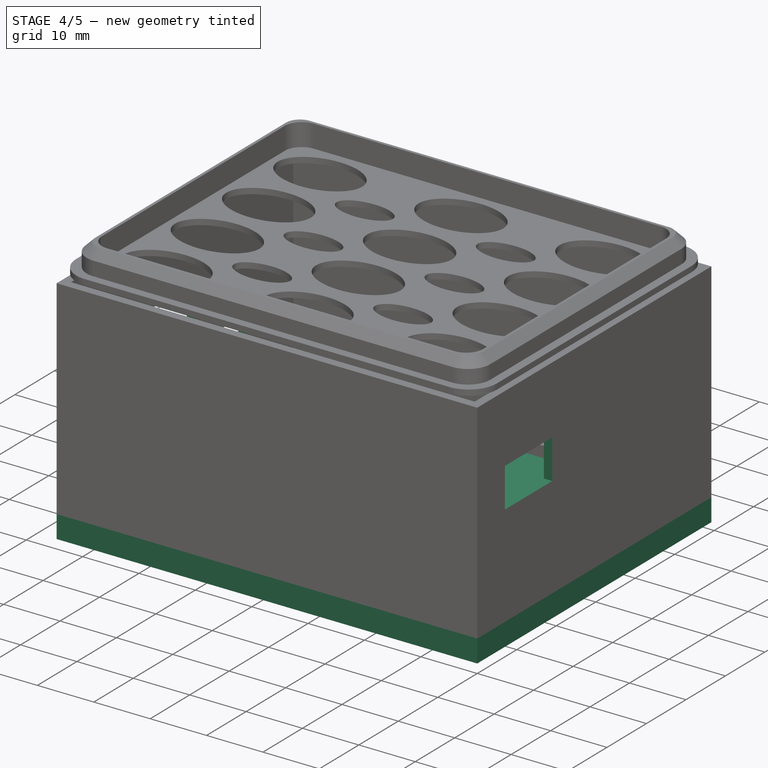
[diagram: stage 4 of 5 — iso view after this stage's code; geometry added in this stage tinted green]
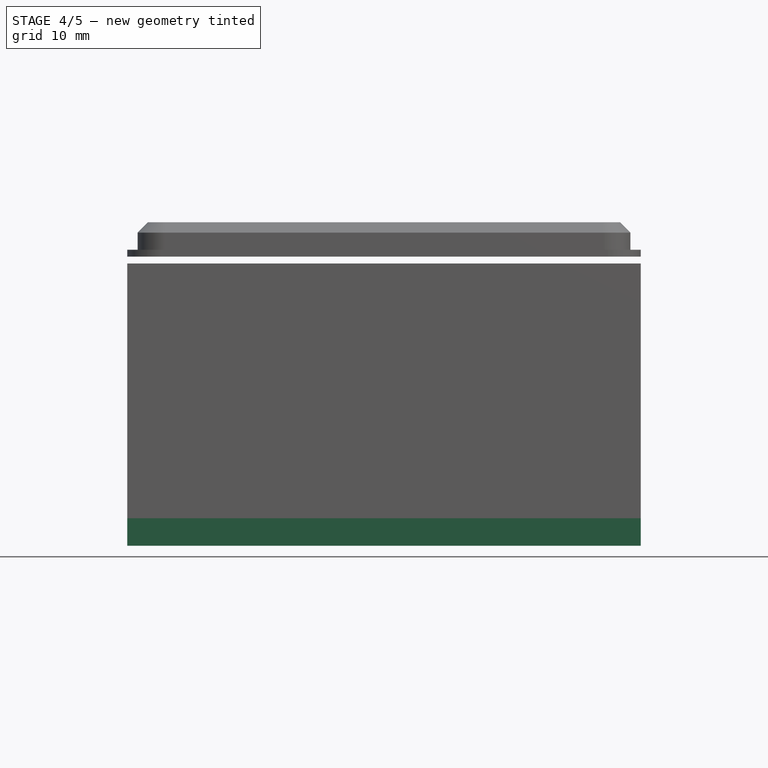
[diagram: stage 4 of 5 — front view after this stage's code; geometry added in this stage tinted green]
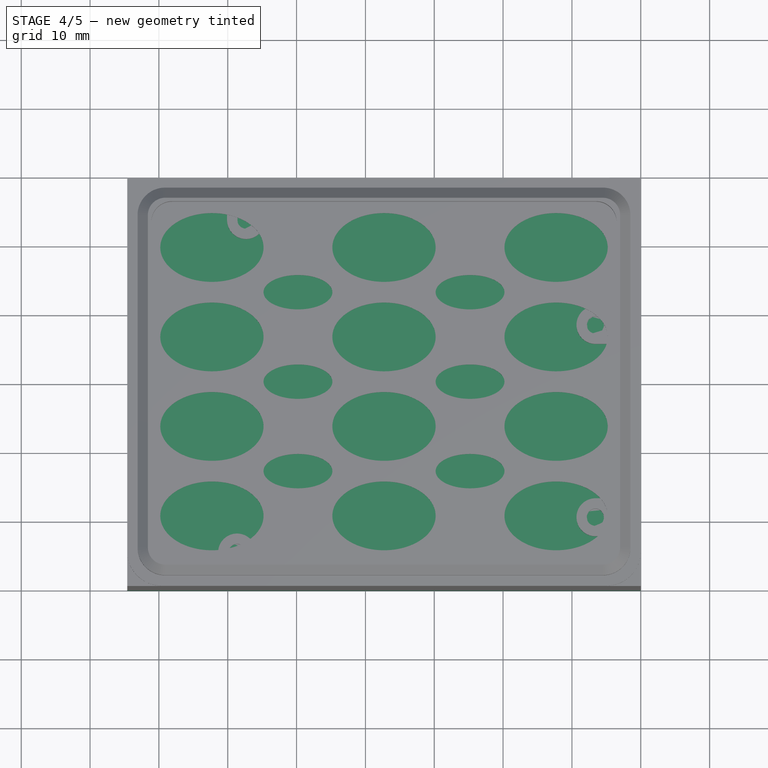
[diagram: stage 4 of 5 — top view after this stage's code; geometry added in this stage tinted green]
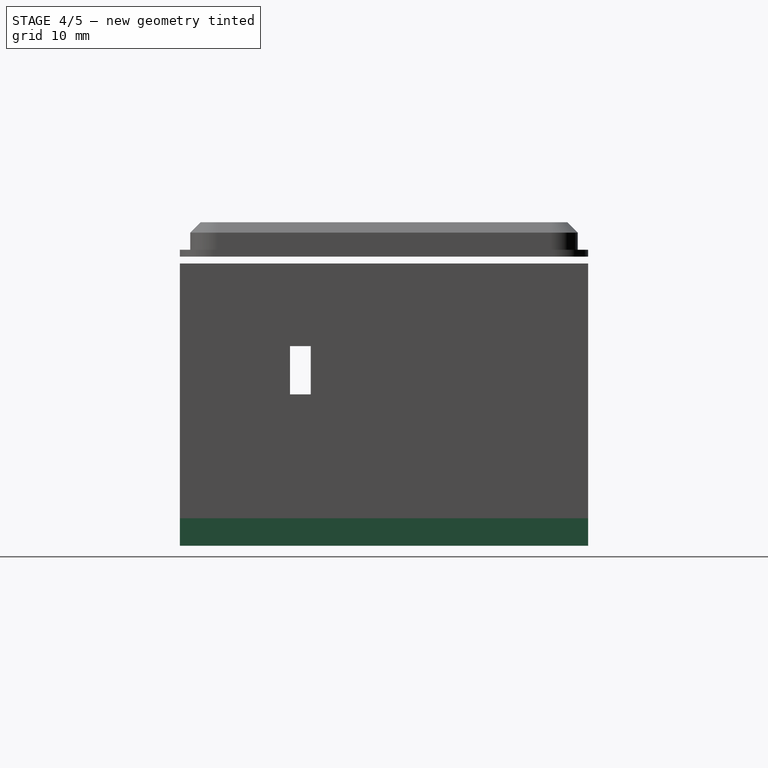
[diagram: stage 4 of 5 — right view after this stage's code; geometry added in this stage tinted green]
FEATURE [PartDesign::Pocket] Pocket
  AllowMultiFace = false
  BaseFeature = -> Pad004
  Length = 5
  Length2 = 100
  Profile = -> Sketch004
  Type = 0
FEATURE [Sketcher::SketchObject] Sketch005
  ExternalGeometry = -> [Pocket]
  MapMode = 5
  Placement = pos=(0,0,2) rot=(0,0,1;0rad)
  Support = -> [Pocket]
  sketch-geometry (12):
    g0: LineSegment StartX=-14.8 StartY=15 StartZ=0 EndX=-5.8 EndY=15 EndZ=0
    g1: LineSegment StartX=-5.8 StartY=15 StartZ=0 EndX=-5.8 EndY=3 EndZ=0
    g2: LineSegment StartX=-5.8 StartY=3 StartZ=0 EndX=-14.8 EndY=3 EndZ=0
    g3: LineSegment StartX=-14.8 StartY=3 StartZ=0 EndX=-14.8 EndY=15 EndZ=0
    g4: LineSegment StartX=-46 StartY=15 StartZ=0 EndX=-34 EndY=15 EndZ=0
    g5: LineSegment StartX=-34 StartY=15 StartZ=0 EndX=-34 EndY=3 EndZ=0
    g6: LineSegment StartX=-34 StartY=3 StartZ=0 EndX=-46 EndY=3 EndZ=0
    g7: LineSegment StartX=-46 StartY=3 StartZ=0 EndX=-46 EndY=15 EndZ=0
    g8: LineSegment StartX=-33 StartY=25 StartZ=0 EndX=-16 EndY=25 EndZ=0
    g9: LineSegment StartX=-16 StartY=25 StartZ=0 EndX=-16 EndY=18 EndZ=0
    g10: LineSegment StartX=-16 StartY=18 StartZ=0 EndX=-33 EndY=18 EndZ=0
    g11: LineSegment StartX=-33 StartY=18 StartZ=0 EndX=-33 EndY=25 EndZ=0
  constraints (36):
    c: Coincident(g0,g1)
    c: Coincident(g1,g2)
    c: Coincident(g2,g3)
    c: Coincident(g3,g0)
    c: Horizontal(g0)
    c: Horizontal(g2)
    c: Vertical(g1)
    c: Vertical(g3)
    c: DistanceX(g1,g-1) = 5.8
    c: DistanceY(g-1,g1) = 3
    c: DistanceY(g1,g1) = 12
    c: DistanceX(g0,g0) = 9
    c: Coincident(g4,g5)
    c: Coincident(g5,g6)
    c: Coincident(g6,g7)
    c: Coincident(g7,g4)
    c: Horizontal(g4)
    c: Horizontal(g6)
    c: Vertical(g5)
    c: Vertical(g7)
    c: DistanceY(g-1,g5) = 3
    c: DistanceX(g4,g4) = 12
    c: DistanceY(g7,g7) = 12
    c: DistanceX(g6,g-1) = 46
    c: Coincident(g8,g9)
    c: Coincident(g9,g10)
    c: Coincident(g10,g11)
    c: Coincident(g11,g8)
    c: Horizontal(g8)
    c: Horizontal(g10)
    c: Vertical(g9)
    c: Vertical(g11)
    c: DistanceX(g10,g-1) = 33
    c: DistanceX(g9,g-1) = 16
    c: DistanceY(g-1,g9) = 18
    c: DistanceY(g10,g8) = 7
FEATURE [Sketcher::SketchObject] Sketch007
  MapMode = 5
  Placement = pos=(-74.6,0,0) rot=(0.57735,-0.57735,-0.57735;2.0944rad)
  Support = -> [Pocket]
  sketch-geometry (12):
    g0: LineSegment StartX=-46 StartY=15 StartZ=0 EndX=-34 EndY=15 EndZ=0
    g1: LineSegment StartX=-34 StartY=15 StartZ=0 EndX=-34 EndY=3 EndZ=0
    g2: LineSegment StartX=-34 StartY=3 StartZ=0 EndX=-46 EndY=3 EndZ=0
    g3: LineSegment StartX=-46 StartY=3 StartZ=0 EndX=-46 EndY=15 EndZ=0
    g4: LineSegment StartX=-15 StartY=15 StartZ=0 EndX=-6 EndY=15 EndZ=0
    g5: LineSegment StartX=-6 StartY=15 StartZ=0 EndX=-6 EndY=3 EndZ=0
    g6: LineSegment StartX=-6 StartY=3 StartZ=0 EndX=-15 EndY=3 EndZ=0
    g7: LineSegment StartX=-15 StartY=3 StartZ=0 EndX=-15 EndY=15 EndZ=0
    g8: LineSegment StartX=-33 StartY=25 StartZ=0 EndX=-16 EndY=25 EndZ=0
    g9: LineSegment StartX=-16 StartY=25 StartZ=0 EndX=-16 EndY=18 EndZ=0
    g10: LineSegment StartX=-16 StartY=18 StartZ=0 EndX=-33 EndY=18 EndZ=0
    g11: LineSegment StartX=-33 StartY=18 StartZ=0 EndX=-33 EndY=25 EndZ=0
  constraints (36):
    c: Coincident(g0,g1)
    c: Coincident(g1,g2)
    c: Coincident(g2,g3)
    c: Coincident(g3,g0)
    c: Horizontal(g0)
    c: Horizontal(g2)
    c: Vertical(g1)
    c: Vertical(g3)
    c: Coincident(g4,g5)
    c: Coincident(g5,g6)
    c: Coincident(g6,g7)
    c: Coincident(g7,g4)
    c: Horizontal(g4)
    c: Horizontal(g6)
    c: Vertical(g5)
    c: Vertical(g7)
    c: Coincident(g8,g9)
    c: Coincident(g9,g10)
    c: Coincident(g10,g11)
    c: Coincident(g11,g8)
    c: Horizontal(g8)
    c: Horizontal(g10)
    c: Vertical(g9)
    c: Vertical(g11)
    c: DistanceX(g2,g-1) = 46
    c: DistanceX(g2,g1) = 12
    c: DistanceY(g2,g0) = 12
    c: DistanceY(g-1,g1) = 3
    c: DistanceY(g-1,g5) = 3
    c: DistanceX(g6,g5) = 9
    c: DistanceY(g5,g4) = 12
    c: DistanceX(g8,g-1) = 16
    c: DistanceX(g8,g-1) = 33
    c: DistanceY(g9,g8) = 7
    c: DistanceY(g-1,g9) = 18
    c: DistanceX(g4,g-1) = 6
FEATURE [PartDesign::Pocket] Pocket003
  BaseFeature = -> Pocket
  Length = 5
  Length2 = 100
  Profile = -> Sketch007
  Type = 0
FEATURE [Sketcher::SketchObject] Sketch008
  ExternalGeometry = -> [Pocket003]
  MapMode = 5
  Placement = pos=(0,0,0) rot=(1,0,0;3.14159rad)
  Support = -> [Pocket003]
  sketch-geometry (4):
    g0: LineSegment StartX=-74.6 StartY=0 StartZ=0 EndX=0 EndY=0 EndZ=0
    g1: LineSegment StartX=0 StartY=0 StartZ=0 EndX=0 EndY=-59.3 EndZ=0
    g2: LineSegment StartX=0 StartY=-59.3 StartZ=0 EndX=-74.6 EndY=-59.3 EndZ=0
    g3: LineSegment StartX=-74.6 StartY=-59.3 StartZ=0 EndX=-74.6 EndY=0 EndZ=0
  constraints (10):
    c: Coincident(g0,g1)
    c: Coincident(g1,g2)
    c: Coincident(g2,g3)
    c: Coincident(g3,g0)
    c: Horizontal(g0)
    c: Horizontal(g2)
    c: Vertical(g1)
    c: Vertical(g3)
    c: Coincident(g0,g-3)
    c: Coincident(g1,g-4)
FEATURE [PartDesign::Pad] Pad005
  BaseFeature = -> Pocket003
  Direction = (1,1,1)
  Length = 4
  Length2 = 100
  Profile = -> Sketch008
  Type = 0
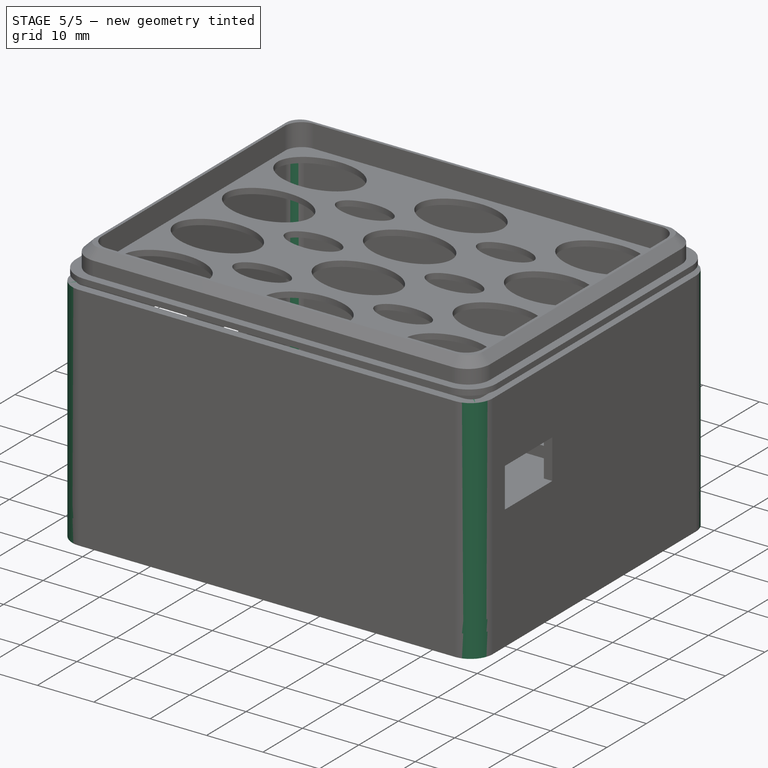
[diagram: stage 5 of 5 — iso view after this stage's code; geometry added in this stage tinted green]
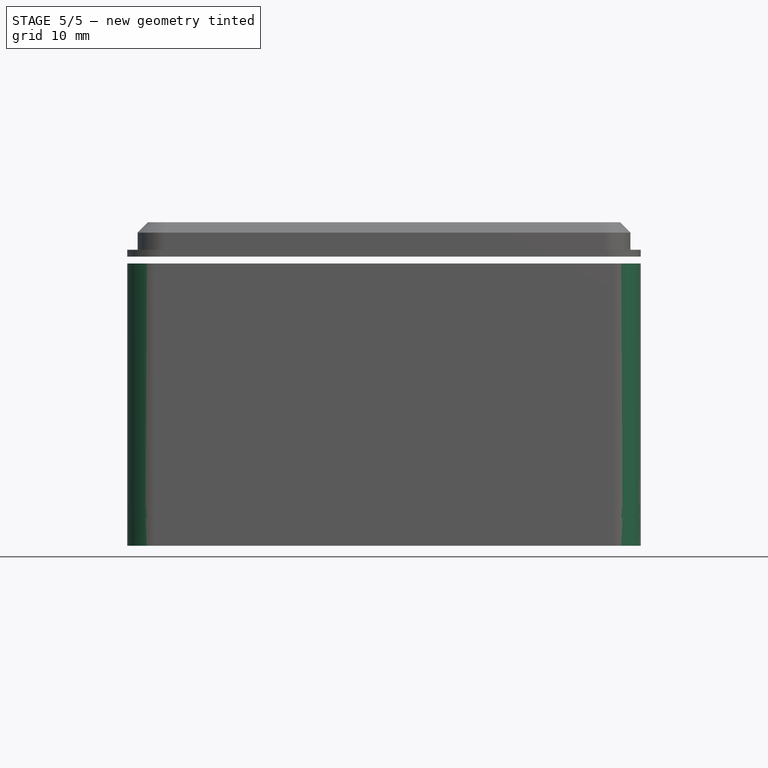
[diagram: stage 5 of 5 — front view after this stage's code; geometry added in this stage tinted green]
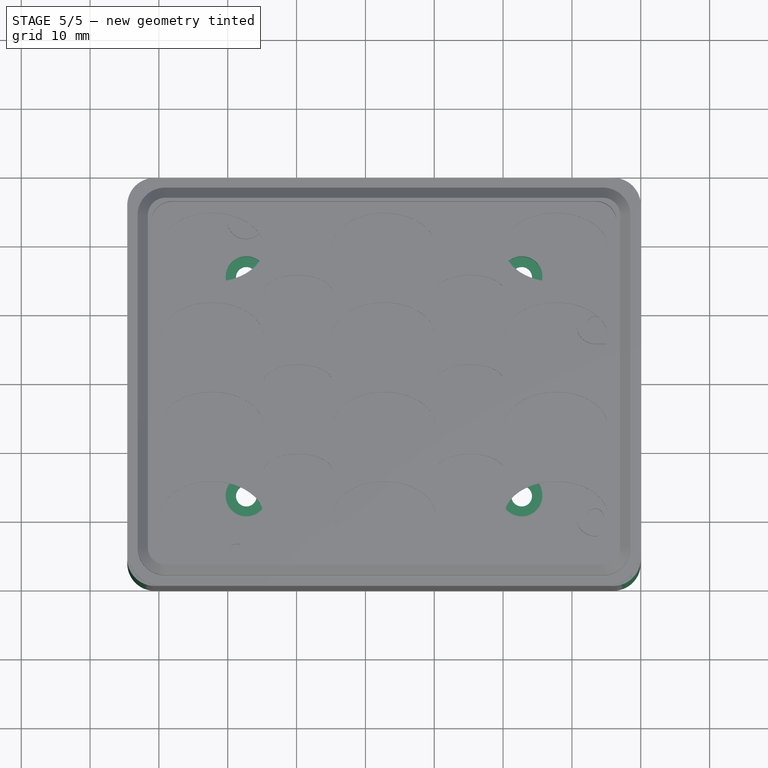
[diagram: stage 5 of 5 — top view after this stage's code; geometry added in this stage tinted green]
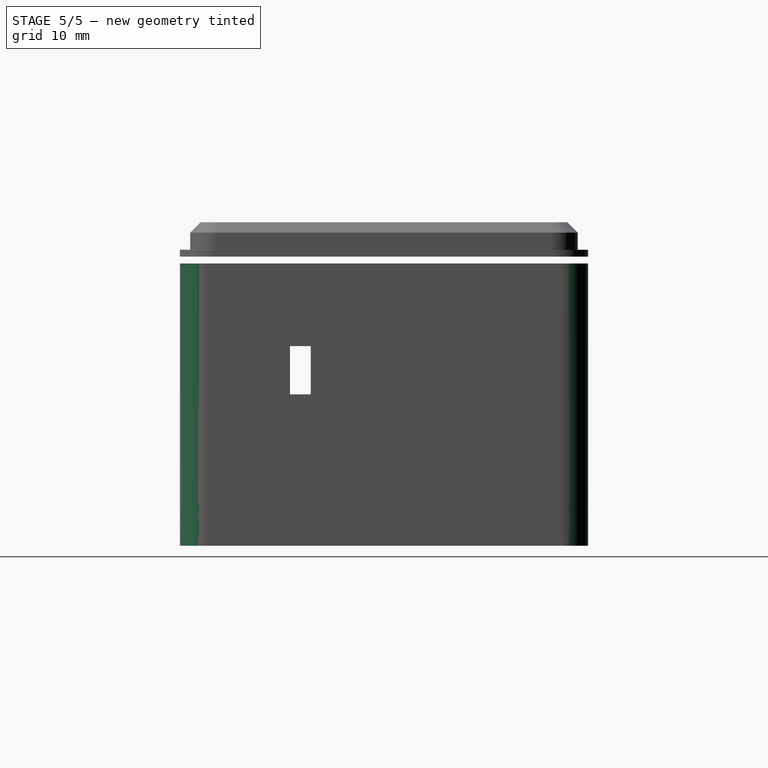
[diagram: stage 5 of 5 — right view after this stage's code; geometry added in this stage tinted green]
FEATURE [Sketcher::SketchObject] Sketch009
  ExternalGeometry = -> [Pad005]
  MapMode = 5
  Support = -> [Pad005]
  sketch-geometry (10):
    g0: LineSegment [constr] StartX=-74.6 StartY=59.3 StartZ=0 EndX=0 EndY=0 EndZ=0
    g1: LineSegment [constr] StartX=0 StartY=59.3 StartZ=0 EndX=-74.6 EndY=0 EndZ=0
    g2: LineSegment [constr] StartX=-57.3 StartY=45.5481 StartZ=0 EndX=-17.3 EndY=45.5481 EndZ=0
    g3: LineSegment [constr] StartX=-17.3 StartY=45.5481 StartZ=0 EndX=-17.3 EndY=13.7519 EndZ=0
    g4: LineSegment [constr] StartX=-17.3 StartY=13.7519 StartZ=0 EndX=-57.3 EndY=13.7519 EndZ=0
    g5: LineSegment [constr] StartX=-57.3 StartY=13.7519 StartZ=0 EndX=-57.3 EndY=45.5481 EndZ=0
    g6: Circle CenterX=-57.3 CenterY=45.5481 CenterZ=0 NormalX=0 NormalY=0 NormalZ=1 AngleXU=0 Radius=3
    g7: Circle CenterX=-17.3 CenterY=45.5481 CenterZ=0 NormalX=0 NormalY=0 NormalZ=1 AngleXU=0 Radius=3
    g8: Circle CenterX=-57.3 CenterY=13.7519 CenterZ=0 NormalX=0 NormalY=0 NormalZ=1 AngleXU=0 Radius=3
    g9: Circle CenterX=-17.3 CenterY=13.7519 CenterZ=0 NormalX=0 NormalY=0 NormalZ=1 AngleXU=0 Radius=3
  constraints (24):
    c: Coincident(g0,g-4)
    c: Coincident(g0,g-1)
    c: Coincident(g1,g-4)
    c: Coincident(g1,g-3)
    c: Coincident(g2,g3)
    c: Coincident(g3,g4)
    c: Coincident(g4,g5)
    c: Coincident(g5,g2)
    c: Horizontal(g2)
    c: Horizontal(g4)
    c: Vertical(g3)
    c: Vertical(g5)
    c: PointOnObject(g2,g0)
    c: PointOnObject(g3,g0)
    c: PointOnObject(g4,g1)
    c: DistanceX(g2,g2) = 40
    c: Coincident(g6,g2)
    c: Radius(g6) = 3
    c: Coincident(g7,g2)
    c: Coincident(g8,g4)
    c: Coincident(g9,g3)
    c: Equal(g6,g8)
    c: Equal(g8,g7)
    c: Equal(g6,g9)
FEATURE [PartDesign::Hole] Hole
  BaseFeature = -> Pad005
  Depth = 25
  DepthType = 0
  Diameter = 3
  DrillPoint = 1
  DrillPointAngle = 118
  HoleCutCountersinkAngle = 90
  HoleCutDepth = 3
  HoleCutDiameter = 6
  HoleCutType = 1
  ModelActualThread = false
  Profile = -> Sketch009
  Tapered = false
  TaperedAngle = 90
  ThreadAngle = 0
  ThreadClass = 0
  ThreadCutOffInner = 0
  ThreadCutOffOuter = 0
  ThreadDirection = 0
  ThreadFit = 0
  ThreadPitch = 0
  ThreadSize = 0
  ThreadType = 0
  Threaded = false
FEATURE [PartDesign::Fillet] Fillet
  Base = -> Hole [Edge96,Edge93,Edge95,Edge98]
  BaseFeature = -> Hole
  Radius = 2
  SupportTransform = false
FEATURE [PartDesign::Fillet] Fillet011
  Base = -> Fillet [Edge62,Edge49,Edge46,Edge45]
  BaseFeature = -> Fillet
  Radius = 4
  SupportTransform = false
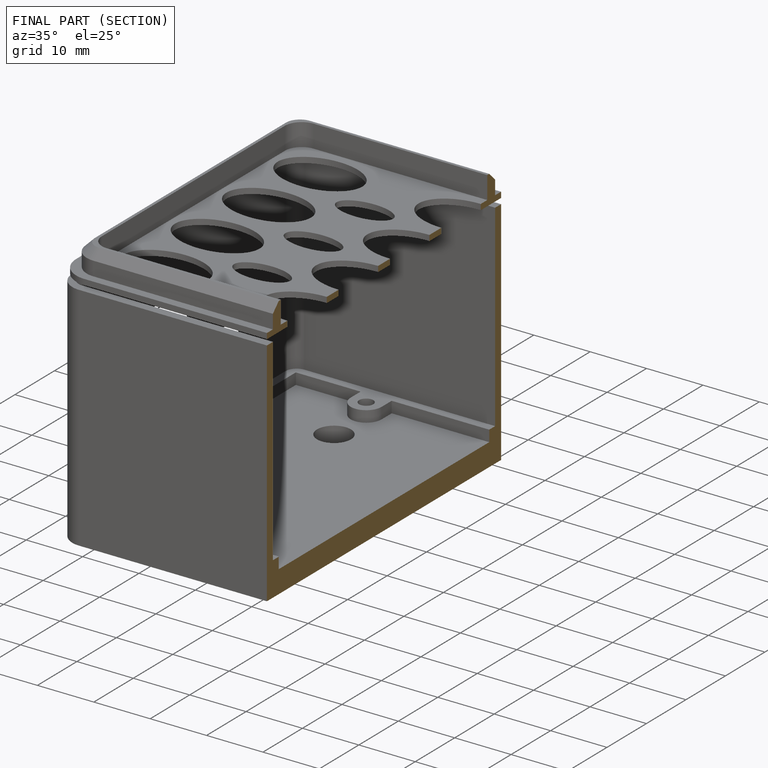
[diagram: finished part — half-section view (interior)]
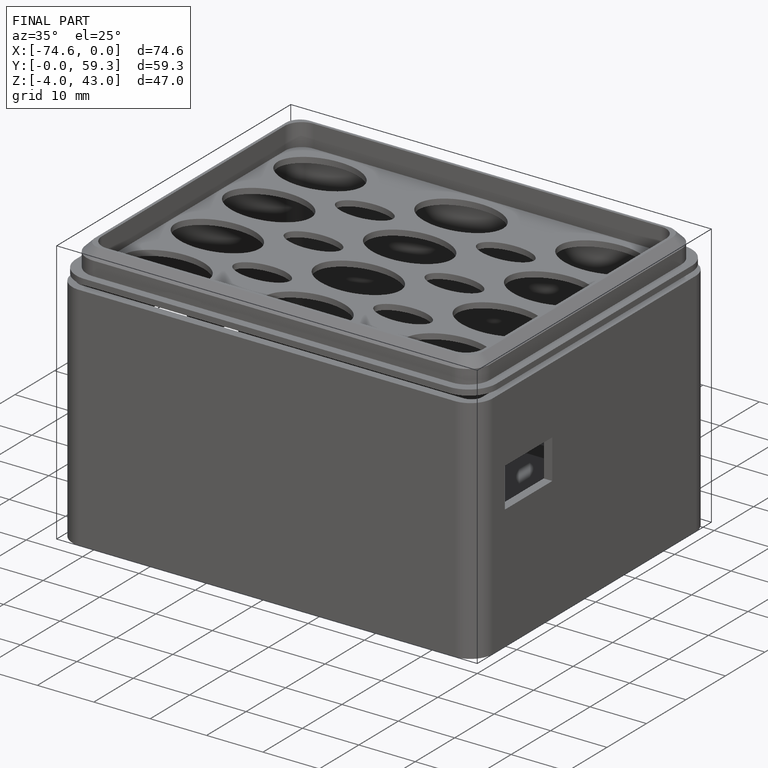
[diagram: finished part — iso view with bounding-box wireframe]
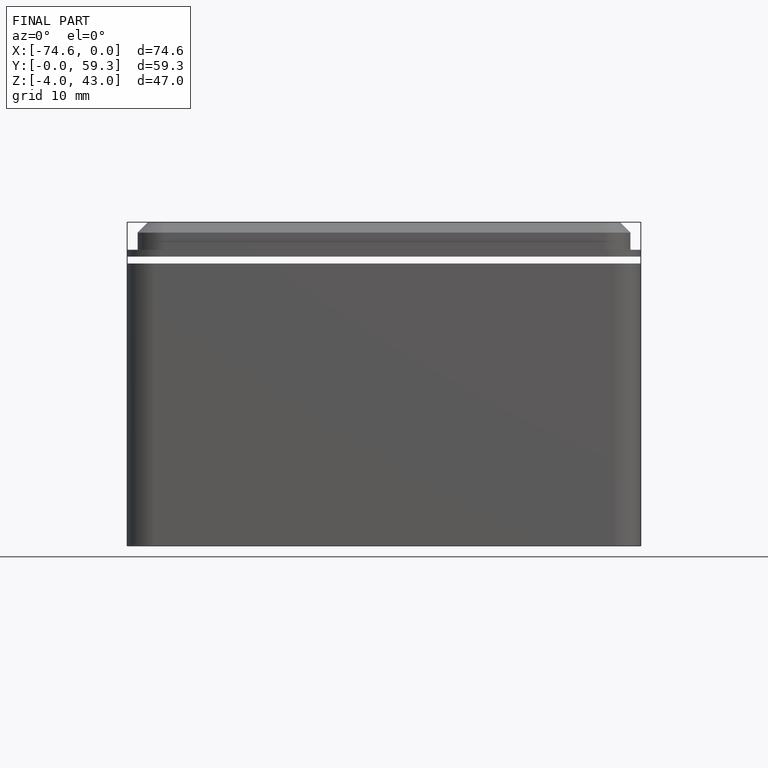
[diagram: finished part — front view with bounding-box wireframe]
